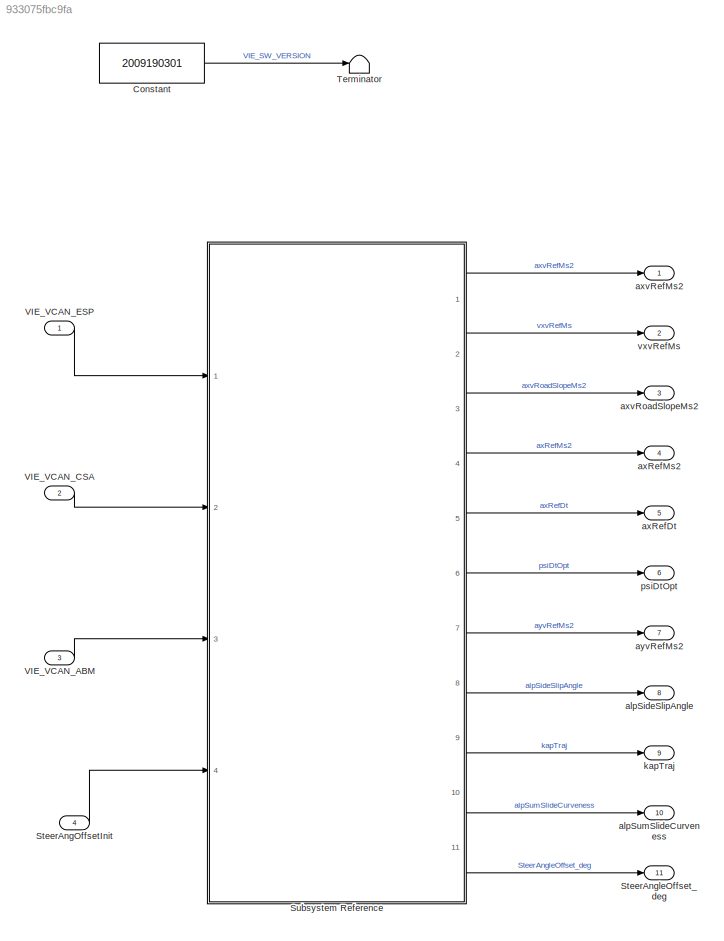
MODEL slx_933075fbc9fa
KIND model
CONFIG AbsTol = auto
CONFIG EnableMultiTasking = off
CONFIG FixedStep = auto
CONFIG InitFcn = , if any(exist('rtifpga_mdlclblib', 'file') ~= 0), rtifpga_mdlclblib('Init', bdroot); end,\n, if any(exist('dsmpb_private', 'file') ~= 0), dsmpb_private('dsmpb_mdlclblib', 'Init', bdroot); end,\n
CONFIG MaxStep = auto
CONFIG MinStep = auto
CONFIG PostLoadFcn = if any(exist('dsrtsu_mdlpostloadfcn', 'file') ~= 0), dsrtsu_mdlpostloadfcn('Execute', bdroot); end
CONFIG RelTol = 1e-3
CONFIG SampleTimeConstraint = Unconstrained
CONFIG SolverName = FixedStepAuto
CONFIG StartTime = 0.0
CONFIG StopTime = Inf
BLOCK [Constant] Constant
  OutDataTypeStr = uint32
  Value = 2009190301
BLOCK [Inport] SteerAngOffsetInit
  Port = 4
BLOCK [Outport] SteerAngleOffset_deg
  BusOutputAsStruct = on
  OutDataTypeStr = single
  Port = 11
  PortDimensions = 1
BLOCK [SubSystem] Subsystem Reference
  Ports = [4, 11]
  ReferencedSubsystem = PvtSubSys_VIE
  RequestExecContextInheritance = off
BLOCK [Terminator] Terminator
BLOCK [Inport] VIE_VCAN_ABM
  BusOutputAsStruct = on
  OutDataTypeStr = Bus: VCAN_ABM_MSG_BUS
  Port = 3
  PortDimensions = 1
BLOCK [Inport] VIE_VCAN_CSA
  BusOutputAsStruct = on
  OutDataTypeStr = Bus: VCAN_CSA_MSG_BUS
  Port = 2
  PortDimensions = 1
BLOCK [Inport] VIE_VCAN_ESP
  BusOutputAsStruct = on
  OutDataTypeStr = Bus: VCAN_ESP_MSG_BUS
  PortDimensions = 1
BLOCK [Outport] alpSideSlipAngle
  BusOutputAsStruct = on
  OutDataTypeStr = single
  Port = 8
  PortDimensions = 1
BLOCK [Outport] alpSumSlideCurveness
  BusOutputAsStruct = on
  OutDataTypeStr = single
  Port = 10
  PortDimensions = 1
BLOCK [Outport] axRefDt
  BusOutputAsStruct = on
  OutDataTypeStr = single
  Port = 5
  PortDimensions = 1
BLOCK [Outport] axRefMs2
  BusOutputAsStruct = on
  OutDataTypeStr = single
  Port = 4
  PortDimensions = 1
BLOCK [Outport] axvRefMs2
  BusOutputAsStruct = on
  OutDataTypeStr = single
  PortDimensions = 1
BLOCK [Outport] axvRoadSlopeMs2
  BusOutputAsStruct = on
  OutDataTypeStr = single
  Port = 3
  PortDimensions = 1
BLOCK [Outport] ayvRefMs2
  BusOutputAsStruct = on
  OutDataTypeStr = single
  Port = 7
  PortDimensions = 1
BLOCK [Outport] kapTraj
  BusOutputAsStruct = on
  OutDataTypeStr = single
  Port = 9
  PortDimensions = 1
BLOCK [Outport] psiDtOpt
  BusOutputAsStruct = on
  OutDataTypeStr = single
  Port = 6
  PortDimensions = 1
BLOCK [Outport] vxvRefMs
  BusOutputAsStruct = on
  OutDataTypeStr = single
  Port = 2
  PortDimensions = 1
LINE Constant:1 -> Terminator:1
LINE SteerAngOffsetInit:1 -> Subsystem Reference:4
LINE Subsystem Reference:1 -> axvRefMs2:1
LINE Subsystem Reference:10 -> alpSumSlideCurveness:1
LINE Subsystem Reference:11 -> SteerAngleOffset_deg:1
LINE Subsystem Reference:2 -> vxvRefMs:1
LINE Subsystem Reference:3 -> axvRoadSlopeMs2:1
LINE Subsystem Reference:4 -> axRefMs2:1
LINE Subsystem Reference:5 -> axRefDt:1
LINE Subsystem Reference:6 -> psiDtOpt:1
LINE Subsystem Reference:7 -> ayvRefMs2:1
LINE Subsystem Reference:8 -> alpSideSlipAngle:1
LINE Subsystem Reference:9 -> kapTraj:1
LINE VIE_VCAN_ABM:1 -> Subsystem Reference:3
LINE VIE_VCAN_CSA:1 -> Subsystem Reference:2
LINE VIE_VCAN_ESP:1 -> Subsystem Reference:1
